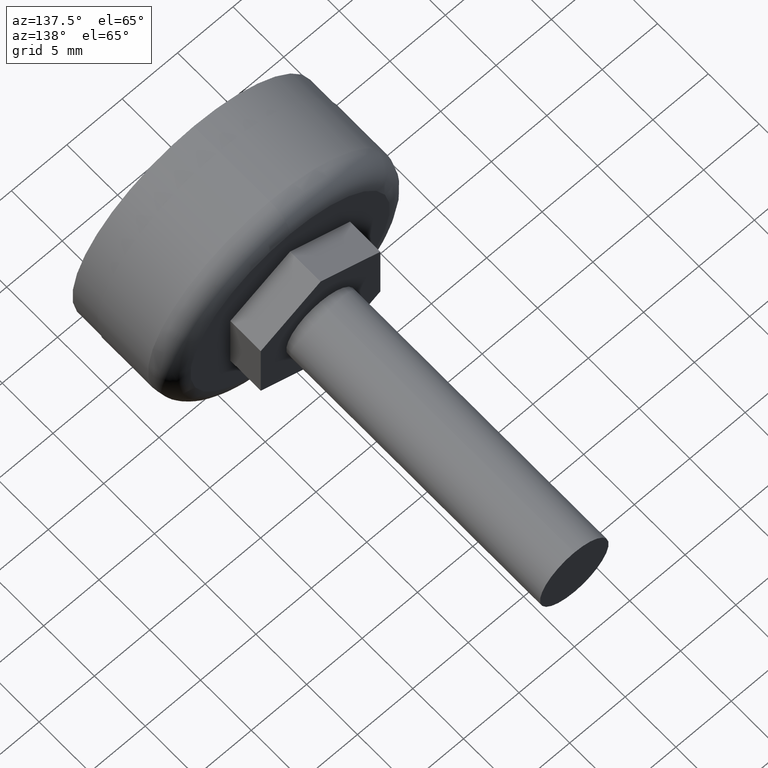
[diagram: clean part render]
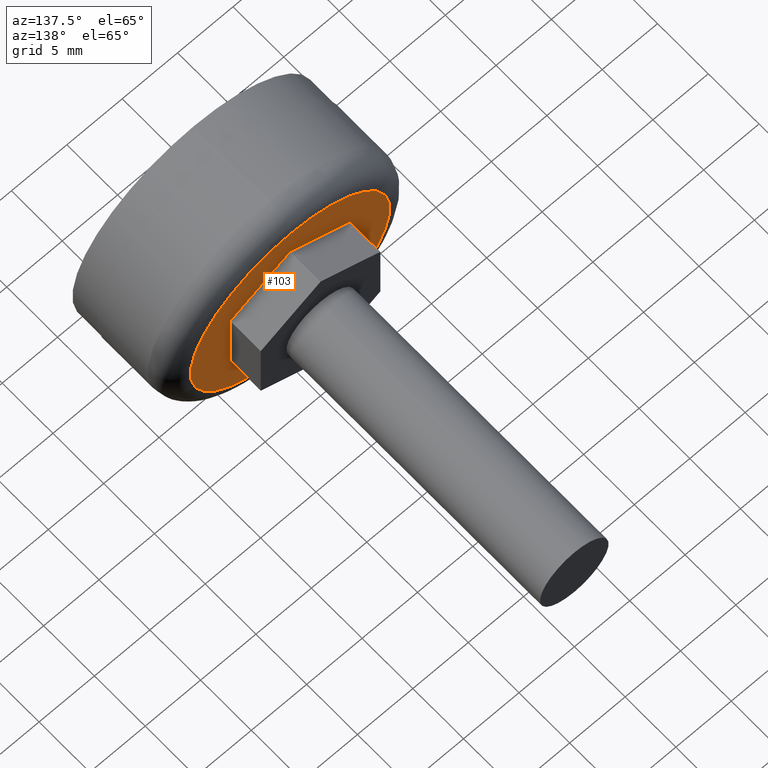
[diagram: same view with one face highlighted and labeled with its STEP entity id]
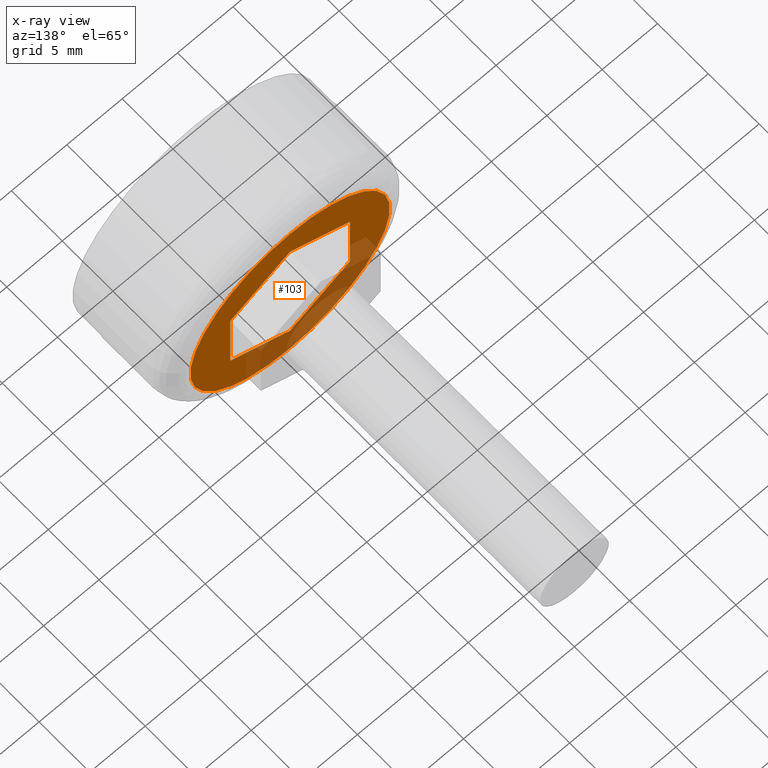
[diagram: x-ray of the same camera — body ghosted, the highlighted face saturated]
A machine part, auxiliary view. The second image highlights one B-rep face of the part: STEP entity #103.
The next image is the same camera in x-ray: the body ghosted, the highlighted face saturated — about 29% of this face is hidden behind the body in this view.
In plain terms, the highlighted planar face has unit normal (0, 1, 0).
Its self-contained STEP definition (entity closure, byte-faithful):
#2 = EDGE_CURVE ( 'NONE', #63, #86, #265, .T. ) ;
#5 = EDGE_CURVE ( 'NONE', #88, #83, #290, .T. ) ;
#10 = EDGE_CURVE ( 'NONE', #67, #63, #303, .T. ) ;
#18 = EDGE_CURVE ( 'NONE', #83, #88, #287, .T. ) ;
#29 = AXIS2_PLACEMENT_3D ( 'NONE', #557, #558, #585 ) ;
#34 = AXIS2_PLACEMENT_3D ( 'NONE', #61, #84, #87 ) ;
#41 = EDGE_CURVE ( 'NONE', #91, #92, #301, .T. ) ;
#60 = DIRECTION ( 'NONE',  ( 0.0000000000000000000, 0.0000000000000000000, 1.000000000000000000 ) ) ;
#61 = CARTESIAN_POINT ( 'NONE',  ( 0.0000000000000000000, 7.000000000000000000, 0.0000000000000000000 ) ) ;
#63 = VERTEX_POINT ( 'NONE', #163 ) ;
#64 = VERTEX_POINT ( 'NONE', #180 ) ;
#67 = VERTEX_POINT ( 'NONE', #198 ) ;
#83 = VERTEX_POINT ( 'NONE', #196 ) ;
#84 = DIRECTION ( 'NONE',  ( 0.0000000000000000000, 1.000000000000000000, 0.0000000000000000000 ) ) ;
#86 = VERTEX_POINT ( 'NONE', #169 ) ;
#87 = DIRECTION ( 'NONE',  ( 0.0000000000000000000, 0.0000000000000000000, 1.000000000000000000 ) ) ;
#88 = VERTEX_POINT ( 'NONE', #186 ) ;
#91 = VERTEX_POINT ( 'NONE', #205 ) ;
#92 = VERTEX_POINT ( 'NONE', #214 ) ;
#96 = CARTESIAN_POINT ( 'NONE',  ( -5.400000000000000400, 7.000000000000000000, -3.117691453623980400 ) ) ;
#103 = ADVANCED_FACE ( 'NONE', ( #326, #322 ), #139, .T. ) ;
#112 = CARTESIAN_POINT ( 'NONE',  ( 5.399999999999999500, 7.000000000000000000, -3.117691453623979500 ) ) ;
#119 = DIRECTION ( 'NONE',  ( 0.0000000000000000000, 0.0000000000000000000, -1.000000000000000000 ) ) ;
#122 = DIRECTION ( 'NONE',  ( 0.0000000000000000000, -0.0000000000000000000, 1.000000000000000000 ) ) ;
#124 = DIRECTION ( 'NONE',  ( 0.0000000000000000000, 1.000000000000000000, 0.0000000000000000000 ) ) ;
#131 = DIRECTION ( 'NONE',  ( -0.8660254037844386000, 0.0000000000000000000, -0.5000000000000000000 ) ) ;
#132 = CARTESIAN_POINT ( 'NONE',  ( 5.399999999999999500, 7.000000000000000000, 3.117691453623982600 ) ) ;
#133 = CARTESIAN_POINT ( 'NONE',  ( 0.0000000000000000000, 7.000000000000000000, 0.0000000000000000000 ) ) ;
#137 = DIRECTION ( 'NONE',  ( 0.8660254037844384900, 0.0000000000000000000, 0.5000000000000001100 ) ) ;
#139 = PLANE ( 'NONE',  #241 ) ;
#150 = CARTESIAN_POINT ( 'NONE',  ( -5.400000000000000400, 7.000000000000000000, 3.117691453623979900 ) ) ;
#163 = CARTESIAN_POINT ( 'NONE',  ( -5.400000000000000400, 7.000000000000000000, -3.117691453623980400 ) ) ;
#169 = CARTESIAN_POINT ( 'NONE',  ( -5.400000000000000400, 7.000000000000000000, 3.117691453623979900 ) ) ;
#171 = DIRECTION ( 'NONE',  ( 0.8660254037844387100, 0.0000000000000000000, -0.4999999999999997200 ) ) ;
#176 = CARTESIAN_POINT ( 'NONE',  ( -7.872804065101680700E-016, 7.000000000000000000, 6.235382907247959800 ) ) ;
#180 = CARTESIAN_POINT ( 'NONE',  ( 5.399999999999999500, 7.000000000000000000, -3.117691453623979500 ) ) ;
#186 = CARTESIAN_POINT ( 'NONE',  ( 0.0000000000000000000, 7.000000000000000000, 9.000000000000000000 ) ) ;
#196 = CARTESIAN_POINT ( 'NONE',  ( 1.224646799147353300E-015, 7.000000000000000000, -9.000000000000000000 ) ) ;
#198 = CARTESIAN_POINT ( 'NONE',  ( 3.535262311868472300E-016, 7.000000000000000000, -6.235382907247958100 ) ) ;
#205 = CARTESIAN_POINT ( 'NONE',  ( -7.872804065101680700E-016, 7.000000000000000000, 6.235382907247959800 ) ) ;
#214 = CARTESIAN_POINT ( 'NONE',  ( 5.399999999999999500, 7.000000000000000000, 3.117691453623982600 ) ) ;
#241 = AXIS2_PLACEMENT_3D ( 'NONE', #133, #124, #122 ) ;
#254 = VECTOR ( 'NONE', #171, 1000.000000000000100 ) ;
#264 = VECTOR ( 'NONE', #60, 1000.000000000000000 ) ;
#265 = LINE ( 'NONE', #96, #264 ) ;
#278 = LINE ( 'NONE', #112, #306 ) ;
#287 = CIRCLE ( 'NONE', #29, 9.000000000000000000 ) ;
#289 = VECTOR ( 'NONE', #556, 1000.000000000000100 ) ;
#290 = CIRCLE ( 'NONE', #34, 9.000000000000000000 ) ;
#301 = LINE ( 'NONE', #176, #254 ) ;
#303 = LINE ( 'NONE', #549, #289 ) ;
#306 = VECTOR ( 'NONE', #131, 1000.000000000000200 ) ;
#322 = FACE_BOUND ( 'NONE', #459, .T. ) ;
#326 = FACE_OUTER_BOUND ( 'NONE', #502, .T. ) ;
#338 = ORIENTED_EDGE ( 'NONE', *, *, #2, .F. ) ;
#342 = EDGE_CURVE ( 'NONE', #64, #67, #278, .T. ) ;
#347 = EDGE_CURVE ( 'NONE', #92, #64, #354, .T. ) ;
#350 = EDGE_CURVE ( 'NONE', #86, #91, #376, .T. ) ;
#354 = LINE ( 'NONE', #132, #356 ) ;
#356 = VECTOR ( 'NONE', #119, 1000.000000000000000 ) ;
#376 = LINE ( 'NONE', #150, #396 ) ;
#396 = VECTOR ( 'NONE', #137, 1000.000000000000200 ) ;
#459 = EDGE_LOOP ( 'NONE', ( #479, #513, #487, #477, #481, #338 ) ) ;
#477 = ORIENTED_EDGE ( 'NONE', *, *, #41, .F. ) ;
#479 = ORIENTED_EDGE ( 'NONE', *, *, #10, .F. ) ;
#481 = ORIENTED_EDGE ( 'NONE', *, *, #350, .F. ) ;
#483 = ORIENTED_EDGE ( 'NONE', *, *, #18, .T. ) ;
#487 = ORIENTED_EDGE ( 'NONE', *, *, #347, .F. ) ;
#502 = EDGE_LOOP ( 'NONE', ( #534, #483 ) ) ;
#513 = ORIENTED_EDGE ( 'NONE', *, *, #342, .F. ) ;
#534 = ORIENTED_EDGE ( 'NONE', *, *, #5, .T. ) ;
#549 = CARTESIAN_POINT ( 'NONE',  ( 3.535262311868472300E-016, 7.000000000000000000, -6.235382907247958100 ) ) ;
#556 = DIRECTION ( 'NONE',  ( -0.8660254037844387100, 0.0000000000000000000, 0.4999999999999997800 ) ) ;
#557 = CARTESIAN_POINT ( 'NONE',  ( 0.0000000000000000000, 7.000000000000000000, 0.0000000000000000000 ) ) ;
#558 = DIRECTION ( 'NONE',  ( 0.0000000000000000000, 1.000000000000000000, 0.0000000000000000000 ) ) ;
#585 = DIRECTION ( 'NONE',  ( 0.0000000000000000000, 0.0000000000000000000, 1.000000000000000000 ) ) ;